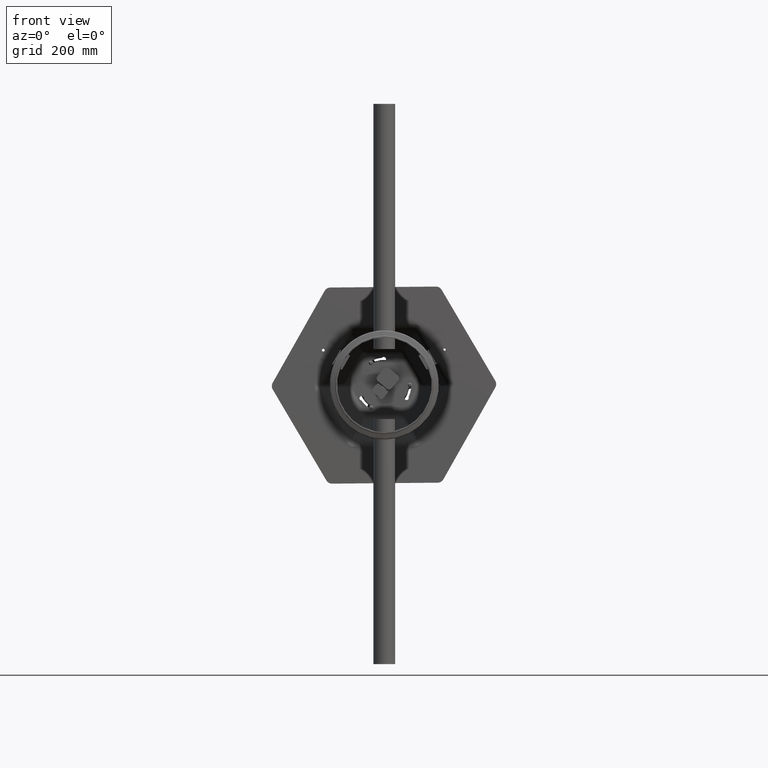
[diagram: clean part render]
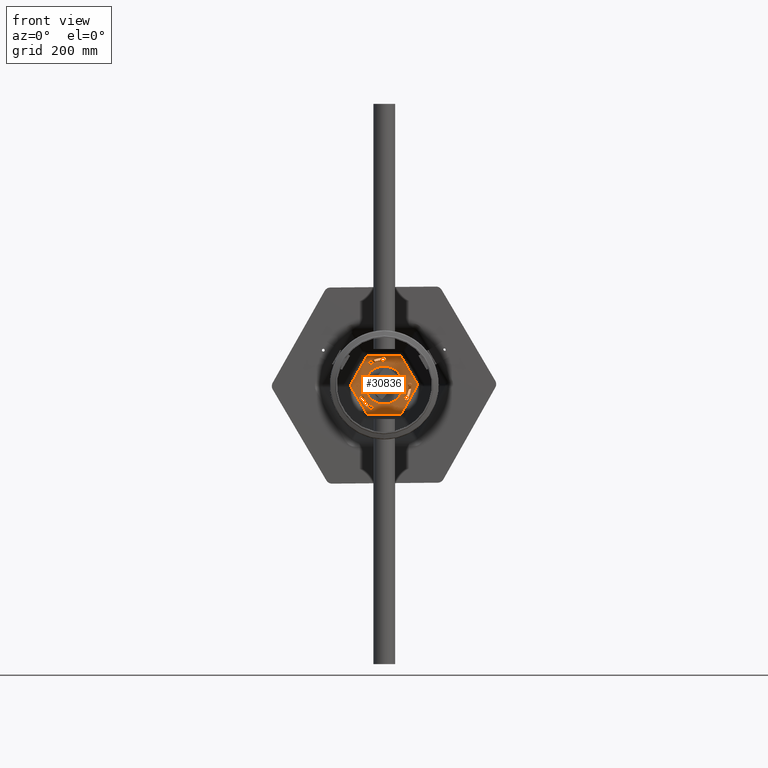
[diagram: same view with one face highlighted and labeled with its STEP entity id]
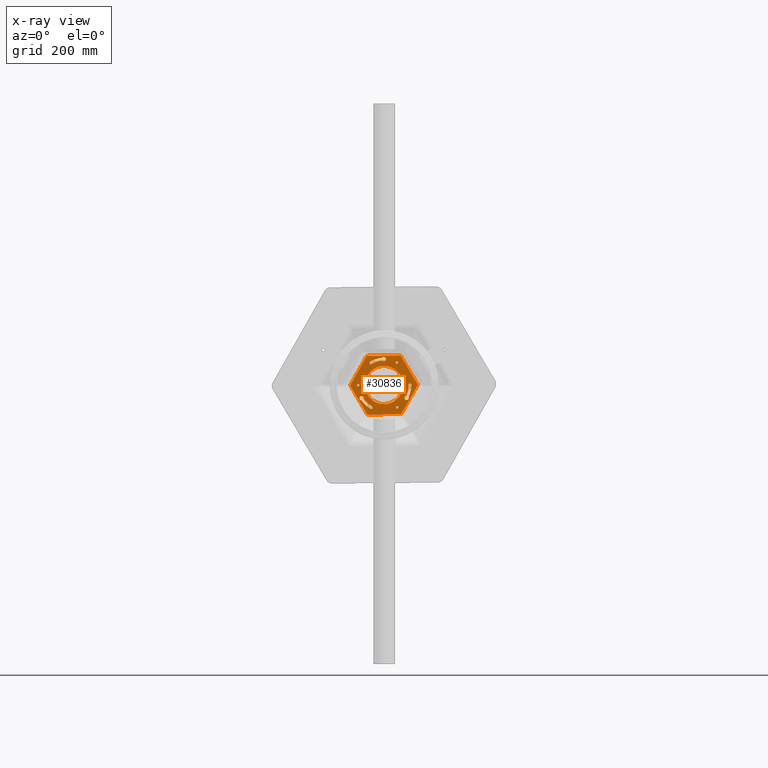
[diagram: x-ray of the same camera — body ghosted, the highlighted face saturated]
A machine part, front view. The second image highlights one B-rep face of the part: STEP entity #30836.
The next image is the same camera in x-ray: the body ghosted, the highlighted face saturated — about 0% of this face is hidden behind the body in this view.
In plain terms, the highlighted planar face has unit normal (-0, 1, 0).
Its self-contained STEP definition (entity closure, byte-faithful):
#21 = CARTESIAN_POINT ( 'NONE',  ( -43.33731325714350600, 23.75063888275055400, 135.0000000000000000 ) ) ;
#200 = CARTESIAN_POINT ( 'NONE',  ( -19.72942321818392100, 40.33311120503607600, 135.0000000000000000 ) ) ;
#386 = DIRECTION ( 'NONE',  ( 0.0000000000000000000, 0.0000000000000000000, 1.000000000000000000 ) ) ;
#402 = AXIS2_PLACEMENT_3D ( 'NONE', #15600, #15589, #15541 ) ;
#543 = DIRECTION ( 'NONE',  ( -0.8660254037844387100, -0.4999999999999998900, 0.0000000000000000000 ) ) ;
#784 = EDGE_CURVE ( 'NONE', #42117, #36613, #19581, .T. ) ;
#866 = CARTESIAN_POINT ( 'NONE',  ( -41.13731325714349700, 23.75063888275055400, 135.0000000000000000 ) ) ;
#890 = CARTESIAN_POINT ( 'NONE',  ( 35.00000000000000700, 0.0000000000000000000, 135.0000000000000000 ) ) ;
#1003 = CIRCLE ( 'NONE', #402, 2.599999999999987700 ) ;
#1068 = EDGE_CURVE ( 'NONE', #12992, #42647, #3122, .T. ) ;
#1324 = AXIS2_PLACEMENT_3D ( 'NONE', #37210, #36905, #36818 ) ;
#1646 = DIRECTION ( 'NONE',  ( 0.0000000000000000000, 0.0000000000000000000, 1.000000000000000000 ) ) ;
#1758 = EDGE_LOOP ( 'NONE', ( #16933, #24157 ) ) ;
#2126 = VERTEX_POINT ( 'NONE', #31276 ) ;
#2438 = VECTOR ( 'NONE', #7055, 1000.000000000000000 ) ;
#2462 = EDGE_CURVE ( 'NONE', #16580, #18860, #45882, .T. ) ;
#2533 = CARTESIAN_POINT ( 'NONE',  ( 0.0000000000000000000, 0.0000000000000000000, 135.0000000000000000 ) ) ;
#2613 = CIRCLE ( 'NONE', #16262, 44.90000000000024000 ) ;
#2824 = CARTESIAN_POINT ( 'NONE',  ( 41.13731325714429900, 23.75063888274916800, 135.0000000000000000 ) ) ;
#2888 = CARTESIAN_POINT ( 'NONE',  ( 41.13620667976078200, -23.75000000000073500, 135.0000000000000000 ) ) ;
#3051 = ORIENTED_EDGE ( 'NONE', *, *, #40595, .T. ) ;
#3110 = AXIS2_PLACEMENT_3D ( 'NONE', #22088, #386, #25646 ) ;
#3122 = CIRCLE ( 'NONE', #12870, 4.100000000000030700 ) ;
#3562 = VERTEX_POINT ( 'NONE', #8869 ) ;
#3619 = DIRECTION ( 'NONE',  ( 1.000000000000000000, 0.0000000000000000000, 0.0000000000000000000 ) ) ;
#3691 = DIRECTION ( 'NONE',  ( -0.0000000000000000000, -0.0000000000000000000, -1.000000000000000000 ) ) ;
#3754 = CARTESIAN_POINT ( 'NONE',  ( 0.0000000000000000000, 0.0000000000000000000, 135.0000000000000000 ) ) ;
#3961 = EDGE_LOOP ( 'NONE', ( #31742, #13343 ) ) ;
#3983 = LINE ( 'NONE', #6403, #24337 ) ;
#4060 = VERTEX_POINT ( 'NONE', #34501 ) ;
#4082 = CIRCLE ( 'NONE', #1324, 2.200000000000017100 ) ;
#4111 = VERTEX_POINT ( 'NONE', #40214 ) ;
#4481 = DIRECTION ( 'NONE',  ( 1.000000000000000000, 0.0000000000000000000, 0.0000000000000000000 ) ) ;
#4660 = CARTESIAN_POINT ( 'NONE',  ( -22.17900565742843400, 44.92328692390822900, 135.0000000000000000 ) ) ;
#4702 = CARTESIAN_POINT ( 'NONE',  ( -53.81158210808097700, 31.06813141562022200, 135.0000000000000000 ) ) ;
#4731 = ORIENTED_EDGE ( 'NONE', *, *, #1068, .T. ) ;
#4959 = CARTESIAN_POINT ( 'NONE',  ( 43.33731325714430900, 23.75063888274916800, 135.0000000000000000 ) ) ;
#4995 = EDGE_CURVE ( 'NONE', #18860, #23429, #21350, .T. ) ;
#5137 = ORIENTED_EDGE ( 'NONE', *, *, #34600, .T. ) ;
#5344 = ORIENTED_EDGE ( 'NONE', *, *, #14603, .T. ) ;
#5593 = DIRECTION ( 'NONE',  ( 9.472722593022467100E-016, -1.000000000000000000, 0.0000000000000000000 ) ) ;
#5601 = VERTEX_POINT ( 'NONE', #7346 ) ;
#5742 = CARTESIAN_POINT ( 'NONE',  ( -1.127570259384924600E-012, -47.50127776549990000, 135.0000000000000000 ) ) ;
#6013 = ORIENTED_EDGE ( 'NONE', *, *, #18342, .T. ) ;
#6166 = DIRECTION ( 'NONE',  ( 1.000000000000000000, 0.0000000000000000000, 0.0000000000000000000 ) ) ;
#6341 = CARTESIAN_POINT ( 'NONE',  ( 53.81158210808091300, 31.06813141562028200, 135.0000000000000000 ) ) ;
#6383 = CIRCLE ( 'NONE', #20867, 4.100000000000034300 ) ;
#6403 = CARTESIAN_POINT ( 'NONE',  ( 58.33513888012745200, 28.45645469558466100, 135.0000000000000000 ) ) ;
#6488 = DIRECTION ( 'NONE',  ( 1.000000000000000000, 0.0000000000000000000, 0.0000000000000000000 ) ) ;
#6543 = DIRECTION ( 'NONE',  ( 1.000000000000000000, 0.0000000000000000000, 0.0000000000000000000 ) ) ;
#6560 = CARTESIAN_POINT ( 'NONE',  ( 53.81158210808097000, -31.06813141562018300, 135.0000000000000000 ) ) ;
#6694 = CIRCLE ( 'NONE', #16559, 50.10000000000026400 ) ;
#6753 = CARTESIAN_POINT ( 'NONE',  ( -53.81158210808097700, 36.29148485569140100, 135.0000000000000000 ) ) ;
#7055 = DIRECTION ( 'NONE',  ( -4.736361296511237500E-016, 1.000000000000000000, 0.0000000000000000000 ) ) ;
#7190 = EDGE_CURVE ( 'NONE', #31088, #17276, #12160, .T. ) ;
#7214 = VERTEX_POINT ( 'NONE', #6341 ) ;
#7346 = CARTESIAN_POINT ( 'NONE',  ( 2.199999999998889500, -47.50127776549990000, 135.0000000000000000 ) ) ;
#7514 = DIRECTION ( 'NONE',  ( 1.000000000000000000, 0.0000000000000000000, 0.0000000000000000000 ) ) ;
#7567 = CARTESIAN_POINT ( 'NONE',  ( 4.814184326218615600E-013, 50.10000000000026400, 135.0000000000000000 ) ) ;
#7616 = DIRECTION ( 'NONE',  ( 0.0000000000000000000, 0.0000000000000000000, 1.000000000000000000 ) ) ;
#7706 = PLANE ( 'NONE',  #30160 ) ;
#7725 = DIRECTION ( 'NONE',  ( -0.0000000000000000000, -0.0000000000000000000, -1.000000000000000000 ) ) ;
#7731 = CARTESIAN_POINT ( 'NONE',  ( 0.0000000000000000000, 0.0000000000000000000, 135.0000000000000000 ) ) ;
#7919 = EDGE_CURVE ( 'NONE', #5601, #4060, #4082, .T. ) ;
#7956 = EDGE_LOOP ( 'NONE', ( #39666, #12235 ) ) ;
#8002 = EDGE_LOOP ( 'NONE', ( #12588, #5344, #42949, #20656, #35936 ) ) ;
#8239 = FACE_BOUND ( 'NONE', #23745, .T. ) ;
#8386 = EDGE_CURVE ( 'NONE', #13227, #12992, #6694, .T. ) ;
#8869 = CARTESIAN_POINT ( 'NONE',  ( 4.314508507928460300E-013, 44.90000000000024000, 135.0000000000000000 ) ) ;
#9390 = FACE_BOUND ( 'NONE', #3961, .T. ) ;
#9746 = AXIS2_PLACEMENT_3D ( 'NONE', #3754, #3691, #3619 ) ;
#10045 = VECTOR ( 'NONE', #5593, 1000.000000000000000 ) ;
#10198 = EDGE_LOOP ( 'NONE', ( #34285, #14999, #18827, #19966, #17897, #6013 ) ) ;
#10279 = VERTEX_POINT ( 'NONE', #4959 ) ;
#10515 = EDGE_CURVE ( 'NONE', #4060, #5601, #37827, .T. ) ;
#10678 = CARTESIAN_POINT ( 'NONE',  ( -38.88454062992192900, -22.44999999999936000, 135.0000000000000000 ) ) ;
#10808 = CARTESIAN_POINT ( 'NONE',  ( 4.523556772046480200, 64.74793955127599100, 135.0000000000000000 ) ) ;
#10875 = AXIS2_PLACEMENT_3D ( 'NONE', #5742, #26008, #16015 ) ;
#11331 = AXIS2_PLACEMENT_3D ( 'NONE', #45556, #45094, #44932 ) ;
#11493 = ORIENTED_EDGE ( 'NONE', *, *, #18981, .T. ) ;
#11559 = AXIS2_PLACEMENT_3D ( 'NONE', #2824, #28021, #6488 ) ;
#11747 = EDGE_CURVE ( 'NONE', #27981, #31088, #37156, .T. ) ;
#11817 = EDGE_CURVE ( 'NONE', #44753, #39906, #6383, .T. ) ;
#11862 = CIRCLE ( 'NONE', #16942, 44.90000000000024700 ) ;
#12160 = LINE ( 'NONE', #6753, #2438 ) ;
#12235 = ORIENTED_EDGE ( 'NONE', *, *, #18663, .T. ) ;
#12275 = AXIS2_PLACEMENT_3D ( 'NONE', #38984, #38930, #38865 ) ;
#12397 = AXIS2_PLACEMENT_3D ( 'NONE', #23304, #1646, #26874 ) ;
#12588 = ORIENTED_EDGE ( 'NONE', *, *, #4995, .T. ) ;
#12870 = AXIS2_PLACEMENT_3D ( 'NONE', #22646, #22505, #22360 ) ;
#12882 = DIRECTION ( 'NONE',  ( 1.000000000000000000, 0.0000000000000000000, 0.0000000000000000000 ) ) ;
#12924 = DIRECTION ( 'NONE',  ( 0.0000000000000000000, 0.0000000000000000000, 1.000000000000000000 ) ) ;
#12979 = CARTESIAN_POINT ( 'NONE',  ( -41.13731325714349700, 23.75063888275055400, 135.0000000000000000 ) ) ;
#12992 = VERTEX_POINT ( 'NONE', #4660 ) ;
#13227 = VERTEX_POINT ( 'NONE', #7567 ) ;
#13343 = ORIENTED_EDGE ( 'NONE', *, *, #35372, .T. ) ;
#14603 = EDGE_CURVE ( 'NONE', #23429, #24091, #25369, .T. ) ;
#14649 = CIRCLE ( 'NONE', #11559, 2.200000000000007300 ) ;
#14809 = EDGE_CURVE ( 'NONE', #24506, #2126, #25945, .T. ) ;
#14999 = ORIENTED_EDGE ( 'NONE', *, *, #21104, .T. ) ;
#15039 = CARTESIAN_POINT ( 'NONE',  ( 0.0000000000000000000, 0.0000000000000000000, 135.0000000000000000 ) ) ;
#15541 = DIRECTION ( 'NONE',  ( 1.000000000000000000, 0.0000000000000000000, 0.0000000000000000000 ) ) ;
#15589 = DIRECTION ( 'NONE',  ( 0.0000000000000000000, 0.0000000000000000000, 1.000000000000000000 ) ) ;
#15600 = CARTESIAN_POINT ( 'NONE',  ( 4.428965874603285600E-013, 47.50000000000031300, 135.0000000000000000 ) ) ;
#15716 = AXIS2_PLACEMENT_3D ( 'NONE', #866, #26113, #4481 ) ;
#15858 = EDGE_CURVE ( 'NONE', #24091, #34918, #35836, .T. ) ;
#15864 = AXIS2_PLACEMENT_3D ( 'NONE', #26206, #26112, #26053 ) ;
#16015 = DIRECTION ( 'NONE',  ( 1.000000000000000000, 0.0000000000000000000, 0.0000000000000000000 ) ) ;
#16132 = ORIENTED_EDGE ( 'NONE', *, *, #16773, .T. ) ;
#16262 = AXIS2_PLACEMENT_3D ( 'NONE', #29219, #7725, #32731 ) ;
#16474 = VERTEX_POINT ( 'NONE', #24823 ) ;
#16559 = AXIS2_PLACEMENT_3D ( 'NONE', #7731, #7616, #7514 ) ;
#16580 = VERTEX_POINT ( 'NONE', #21835 ) ;
#16670 = CARTESIAN_POINT ( 'NONE',  ( -23.75000000000078900, -41.13620667976051200, 135.0000000000000000 ) ) ;
#16705 = CARTESIAN_POINT ( 'NONE',  ( -25.06478730813242400, -37.25273731147960600, 135.0000000000000000 ) ) ;
#16773 = EDGE_CURVE ( 'NONE', #44944, #13227, #1003, .T. ) ;
#16933 = ORIENTED_EDGE ( 'NONE', *, *, #7919, .T. ) ;
#16942 = AXIS2_PLACEMENT_3D ( 'NONE', #18670, #43455, #22317 ) ;
#16976 = CARTESIAN_POINT ( 'NONE',  ( -2.801986739927161200E-014, -62.13626283124039400, 135.0000000000000000 ) ) ;
#17276 = VERTEX_POINT ( 'NONE', #4702 ) ;
#17870 = FACE_BOUND ( 'NONE', #29874, .T. ) ;
#17873 = ORIENTED_EDGE ( 'NONE', *, *, #41596, .T. ) ;
#17897 = ORIENTED_EDGE ( 'NONE', *, *, #11817, .T. ) ;
#17962 = EDGE_CURVE ( 'NONE', #2126, #44753, #44533, .T. ) ;
#18318 = VECTOR ( 'NONE', #31478, 1000.000000000000000 ) ;
#18342 = EDGE_CURVE ( 'NONE', #39906, #16474, #22387, .T. ) ;
#18617 = DIRECTION ( 'NONE',  ( 1.000000000000000000, 0.0000000000000000000, -0.0000000000000000000 ) ) ;
#18663 = EDGE_CURVE ( 'NONE', #4111, #10279, #38337, .T. ) ;
#18670 = CARTESIAN_POINT ( 'NONE',  ( 0.0000000000000000000, 0.0000000000000000000, 135.0000000000000000 ) ) ;
#18827 = ORIENTED_EDGE ( 'NONE', *, *, #14809, .T. ) ;
#18847 = CIRCLE ( 'NONE', #37523, 2.599999999999991200 ) ;
#18860 = VERTEX_POINT ( 'NONE', #16705 ) ;
#18981 = EDGE_CURVE ( 'NONE', #43920, #21262, #28398, .T. ) ;
#18999 = FACE_BOUND ( 'NONE', #1758, .T. ) ;
#19260 = CARTESIAN_POINT ( 'NONE',  ( 2.600000000000430400, 47.50000000000031300, 135.0000000000000000 ) ) ;
#19581 = CIRCLE ( 'NONE', #11331, 35.00000000000000700 ) ;
#19966 = ORIENTED_EDGE ( 'NONE', *, *, #17962, .T. ) ;
#20656 = ORIENTED_EDGE ( 'NONE', *, *, #34695, .T. ) ;
#20867 = AXIS2_PLACEMENT_3D ( 'NONE', #29549, #29540, #29494 ) ;
#21104 = EDGE_CURVE ( 'NONE', #26755, #24506, #18847, .T. ) ;
#21262 = VERTEX_POINT ( 'NONE', #21 ) ;
#21350 = CIRCLE ( 'NONE', #9746, 44.90000000000023300 ) ;
#21835 = CARTESIAN_POINT ( 'NONE',  ( -19.65000000000075500, -41.13620667976051200, 135.0000000000000000 ) ) ;
#22062 = DIRECTION ( 'NONE',  ( 1.000000000000000000, 0.0000000000000000000, 0.0000000000000000000 ) ) ;
#22088 = CARTESIAN_POINT ( 'NONE',  ( 4.428965874603285600E-013, 47.50000000000031300, 135.0000000000000000 ) ) ;
#22123 = DIRECTION ( 'NONE',  ( 0.0000000000000000000, 0.0000000000000000000, 1.000000000000000000 ) ) ;
#22175 = CARTESIAN_POINT ( 'NONE',  ( 41.13731325714429900, 23.75063888274916800, 135.0000000000000000 ) ) ;
#22317 = DIRECTION ( 'NONE',  ( 1.000000000000000000, 0.0000000000000000000, 0.0000000000000000000 ) ) ;
#22360 = DIRECTION ( 'NONE',  ( 1.000000000000000000, 0.0000000000000000000, 0.0000000000000000000 ) ) ;
#22387 = CIRCLE ( 'NONE', #39747, 4.100000000000034300 ) ;
#22505 = DIRECTION ( 'NONE',  ( 0.0000000000000000000, 0.0000000000000000000, 1.000000000000000000 ) ) ;
#22646 = CARTESIAN_POINT ( 'NONE',  ( -23.74999999999971600, 41.13620667976114500, 135.0000000000000000 ) ) ;
#22910 = EDGE_CURVE ( 'NONE', #3562, #44944, #34169, .T. ) ;
#23304 = CARTESIAN_POINT ( 'NONE',  ( -23.75000000000078900, -41.13620667976051200, 135.0000000000000000 ) ) ;
#23429 = VERTEX_POINT ( 'NONE', #10678 ) ;
#23745 = EDGE_LOOP ( 'NONE', ( #11493, #5137 ) ) ;
#24021 = LINE ( 'NONE', #10808, #32286 ) ;
#24091 = VERTEX_POINT ( 'NONE', #39715 ) ;
#24157 = ORIENTED_EDGE ( 'NONE', *, *, #10515, .T. ) ;
#24166 = CARTESIAN_POINT ( 'NONE',  ( 38.88454062992117600, -22.45000000000069600, 135.0000000000000000 ) ) ;
#24337 = VECTOR ( 'NONE', #27956, 1000.000000000000100 ) ;
#24506 = VERTEX_POINT ( 'NONE', #42482 ) ;
#24823 = CARTESIAN_POINT ( 'NONE',  ( 44.79421052631598600, -3.080373893556446000, 135.0000000000000000 ) ) ;
#24963 = ORIENTED_EDGE ( 'NONE', *, *, #7190, .T. ) ;
#24983 = CARTESIAN_POINT ( 'NONE',  ( -27.81520486888798200, -41.66922579196565800, 135.0000000000000000 ) ) ;
#25301 = AXIS2_PLACEMENT_3D ( 'NONE', #12979, #12924, #12882 ) ;
#25369 = CIRCLE ( 'NONE', #41410, 2.599999999999991200 ) ;
#25646 = DIRECTION ( 'NONE',  ( 1.000000000000000000, 0.0000000000000000000, 0.0000000000000000000 ) ) ;
#25945 = CIRCLE ( 'NONE', #15864, 50.10000000000027100 ) ;
#26008 = DIRECTION ( 'NONE',  ( 0.0000000000000000000, 0.0000000000000000000, 1.000000000000000000 ) ) ;
#26053 = DIRECTION ( 'NONE',  ( 1.000000000000000000, 0.0000000000000000000, 0.0000000000000000000 ) ) ;
#26112 = DIRECTION ( 'NONE',  ( 0.0000000000000000000, 0.0000000000000000000, 1.000000000000000000 ) ) ;
#26113 = DIRECTION ( 'NONE',  ( 0.0000000000000000000, 0.0000000000000000000, 1.000000000000000000 ) ) ;
#26206 = CARTESIAN_POINT ( 'NONE',  ( 0.0000000000000000000, 0.0000000000000000000, 135.0000000000000000 ) ) ;
#26755 = VERTEX_POINT ( 'NONE', #24166 ) ;
#26874 = DIRECTION ( 'NONE',  ( 1.000000000000000000, 0.0000000000000000000, 0.0000000000000000000 ) ) ;
#27353 = FACE_BOUND ( 'NONE', #8002, .T. ) ;
#27728 = DIRECTION ( 'NONE',  ( 0.0000000000000000000, 0.0000000000000000000, 1.000000000000000000 ) ) ;
#27751 = CARTESIAN_POINT ( 'NONE',  ( -38.93731325714348700, 23.75063888275055400, 135.0000000000000000 ) ) ;
#27956 = DIRECTION ( 'NONE',  ( 0.8660254037844388200, -0.4999999999999996700, 0.0000000000000000000 ) ) ;
#27981 = VERTEX_POINT ( 'NONE', #16976 ) ;
#27989 = ORIENTED_EDGE ( 'NONE', *, *, #28858, .T. ) ;
#28021 = DIRECTION ( 'NONE',  ( 0.0000000000000000000, 0.0000000000000000000, 1.000000000000000000 ) ) ;
#28076 = DIRECTION ( 'NONE',  ( 0.0000000000000000000, 0.0000000000000000000, 1.000000000000000000 ) ) ;
#28237 = EDGE_CURVE ( 'NONE', #16474, #26755, #11862, .T. ) ;
#28398 = CIRCLE ( 'NONE', #25301, 2.200000000000007300 ) ;
#28858 = EDGE_CURVE ( 'NONE', #7214, #45236, #38469, .T. ) ;
#29219 = CARTESIAN_POINT ( 'NONE',  ( 0.0000000000000000000, 0.0000000000000000000, 135.0000000000000000 ) ) ;
#29354 = CARTESIAN_POINT ( 'NONE',  ( -4.523556772046490900, -64.74793955127597700, 135.0000000000000000 ) ) ;
#29494 = DIRECTION ( 'NONE',  ( 1.000000000000000000, 0.0000000000000000000, 0.0000000000000000000 ) ) ;
#29540 = DIRECTION ( 'NONE',  ( 0.0000000000000000000, 0.0000000000000000000, 1.000000000000000000 ) ) ;
#29549 = CARTESIAN_POINT ( 'NONE',  ( 47.50000000000013500, -6.210310043996969400E-013, 135.0000000000000000 ) ) ;
#29561 = EDGE_CURVE ( 'NONE', #10279, #4111, #14649, .T. ) ;
#29706 = AXIS2_PLACEMENT_3D ( 'NONE', #41273, #41230, #41217 ) ;
#29833 = EDGE_LOOP ( 'NONE', ( #27989, #34139, #32039, #24963, #17873, #34701 ) ) ;
#29874 = EDGE_LOOP ( 'NONE', ( #3051, #36498, #16132, #30464, #4731 ) ) ;
#30160 = AXIS2_PLACEMENT_3D ( 'NONE', #15039, #39824, #18617 ) ;
#30365 = CIRCLE ( 'NONE', #12397, 4.100000000000034300 ) ;
#30464 = ORIENTED_EDGE ( 'NONE', *, *, #8386, .T. ) ;
#30782 = VERTEX_POINT ( 'NONE', #42947 ) ;
#30836 = ADVANCED_FACE ( 'NONE', ( #37824, #9390, #46164, #36722, #27353, #18999, #17870, #8239 ), #7706, .F. ) ;
#30854 = EDGE_CURVE ( 'NONE', #45236, #27981, #35589, .T. ) ;
#30986 = DIRECTION ( 'NONE',  ( 1.000000000000000000, 0.0000000000000000000, 0.0000000000000000000 ) ) ;
#31030 = DIRECTION ( 'NONE',  ( 0.0000000000000000000, 0.0000000000000000000, 1.000000000000000000 ) ) ;
#31088 = VERTEX_POINT ( 'NONE', #44933 ) ;
#31150 = CARTESIAN_POINT ( 'NONE',  ( 47.50000000000013500, -6.210310043996969400E-013, 135.0000000000000000 ) ) ;
#31276 = CARTESIAN_POINT ( 'NONE',  ( 49.99421052631602400, -3.254061131942533400, 135.0000000000000000 ) ) ;
#31478 = DIRECTION ( 'NONE',  ( -0.8660254037844387100, 0.4999999999999998300, 0.0000000000000000000 ) ) ;
#31725 = CARTESIAN_POINT ( 'NONE',  ( -58.33513888012744500, -28.45645469558464300, 135.0000000000000000 ) ) ;
#31742 = ORIENTED_EDGE ( 'NONE', *, *, #784, .T. ) ;
#32039 = ORIENTED_EDGE ( 'NONE', *, *, #11747, .T. ) ;
#32286 = VECTOR ( 'NONE', #35713, 1000.000000000000000 ) ;
#32298 = CARTESIAN_POINT ( 'NONE',  ( 51.60000000000016500, -6.210310043996969400E-013, 135.0000000000000000 ) ) ;
#32731 = DIRECTION ( 'NONE',  ( 1.000000000000000000, 0.0000000000000000000, 0.0000000000000000000 ) ) ;
#33516 = DIRECTION ( 'NONE',  ( 0.0000000000000000000, 0.0000000000000000000, 1.000000000000000000 ) ) ;
#33930 = CARTESIAN_POINT ( 'NONE',  ( 53.81158210808097700, -36.29148485569137300, 135.0000000000000000 ) ) ;
#34139 = ORIENTED_EDGE ( 'NONE', *, *, #30854, .T. ) ;
#34169 = CIRCLE ( 'NONE', #3110, 2.599999999999987700 ) ;
#34285 = ORIENTED_EDGE ( 'NONE', *, *, #28237, .T. ) ;
#34421 = EDGE_CURVE ( 'NONE', #30782, #7214, #3983, .T. ) ;
#34450 = AXIS2_PLACEMENT_3D ( 'NONE', #2533, #27728, #6166 ) ;
#34482 = VECTOR ( 'NONE', #543, 1000.000000000000000 ) ;
#34501 = CARTESIAN_POINT ( 'NONE',  ( -2.200000000001144600, -47.50127776549990000, 135.0000000000000000 ) ) ;
#34600 = EDGE_CURVE ( 'NONE', #21262, #43920, #44792, .T. ) ;
#34695 = EDGE_CURVE ( 'NONE', #34918, #16580, #30365, .T. ) ;
#34701 = ORIENTED_EDGE ( 'NONE', *, *, #34421, .T. ) ;
#34754 = AXIS2_PLACEMENT_3D ( 'NONE', #16670, #33516, #45662 ) ;
#34866 = DIRECTION ( 'NONE',  ( 1.000000000000000000, 0.0000000000000000000, 0.0000000000000000000 ) ) ;
#34918 = VERTEX_POINT ( 'NONE', #24983 ) ;
#34943 = DIRECTION ( 'NONE',  ( 0.0000000000000000000, 0.0000000000000000000, 1.000000000000000000 ) ) ;
#35039 = CARTESIAN_POINT ( 'NONE',  ( -41.13620667976155000, -23.74999999999938200, 135.0000000000000000 ) ) ;
#35372 = EDGE_CURVE ( 'NONE', #36613, #42117, #44705, .T. ) ;
#35589 = LINE ( 'NONE', #29354, #34482 ) ;
#35713 = DIRECTION ( 'NONE',  ( 0.8660254037844388200, 0.4999999999999997200, -0.0000000000000000000 ) ) ;
#35836 = CIRCLE ( 'NONE', #12275, 50.10000000000025700 ) ;
#35936 = ORIENTED_EDGE ( 'NONE', *, *, #2462, .T. ) ;
#36498 = ORIENTED_EDGE ( 'NONE', *, *, #22910, .T. ) ;
#36613 = VERTEX_POINT ( 'NONE', #42596 ) ;
#36722 = FACE_BOUND ( 'NONE', #7956, .T. ) ;
#36818 = DIRECTION ( 'NONE',  ( 1.000000000000000000, 0.0000000000000000000, 0.0000000000000000000 ) ) ;
#36905 = DIRECTION ( 'NONE',  ( 0.0000000000000000000, 0.0000000000000000000, 1.000000000000000000 ) ) ;
#37156 = LINE ( 'NONE', #31725, #18318 ) ;
#37210 = CARTESIAN_POINT ( 'NONE',  ( -1.127570259384924600E-012, -47.50127776549990000, 135.0000000000000000 ) ) ;
#37523 = AXIS2_PLACEMENT_3D ( 'NONE', #2888, #28076, #6543 ) ;
#37824 = FACE_OUTER_BOUND ( 'NONE', #29833, .T. ) ;
#37827 = CIRCLE ( 'NONE', #10875, 2.200000000000017100 ) ;
#38337 = CIRCLE ( 'NONE', #38869, 2.200000000000007300 ) ;
#38469 = LINE ( 'NONE', #33930, #10045 ) ;
#38865 = DIRECTION ( 'NONE',  ( 1.000000000000000000, 0.0000000000000000000, 0.0000000000000000000 ) ) ;
#38869 = AXIS2_PLACEMENT_3D ( 'NONE', #22175, #22123, #22062 ) ;
#38930 = DIRECTION ( 'NONE',  ( 0.0000000000000000000, 0.0000000000000000000, 1.000000000000000000 ) ) ;
#38984 = CARTESIAN_POINT ( 'NONE',  ( 0.0000000000000000000, 0.0000000000000000000, 135.0000000000000000 ) ) ;
#39269 = CARTESIAN_POINT ( 'NONE',  ( 43.40000000000009800, -6.205288992120465000E-013, 135.0000000000000000 ) ) ;
#39666 = ORIENTED_EDGE ( 'NONE', *, *, #29561, .T. ) ;
#39715 = CARTESIAN_POINT ( 'NONE',  ( -43.38787272960108500, -25.04999999999928300, 135.0000000000000000 ) ) ;
#39747 = AXIS2_PLACEMENT_3D ( 'NONE', #31150, #31030, #30986 ) ;
#39824 = DIRECTION ( 'NONE',  ( 0.0000000000000000000, 0.0000000000000000000, 1.000000000000000000 ) ) ;
#39906 = VERTEX_POINT ( 'NONE', #39269 ) ;
#40214 = CARTESIAN_POINT ( 'NONE',  ( 38.93731325714429700, 23.75063888274916800, 135.0000000000000000 ) ) ;
#40595 = EDGE_CURVE ( 'NONE', #42647, #3562, #2613, .T. ) ;
#41217 = DIRECTION ( 'NONE',  ( 1.000000000000000000, 0.0000000000000000000, 0.0000000000000000000 ) ) ;
#41230 = DIRECTION ( 'NONE',  ( 0.0000000000000000000, 0.0000000000000000000, 1.000000000000000000 ) ) ;
#41273 = CARTESIAN_POINT ( 'NONE',  ( 47.50000000000013500, -6.210310043996969400E-013, 135.0000000000000000 ) ) ;
#41410 = AXIS2_PLACEMENT_3D ( 'NONE', #35039, #34943, #34866 ) ;
#41596 = EDGE_CURVE ( 'NONE', #17276, #30782, #24021, .T. ) ;
#42117 = VERTEX_POINT ( 'NONE', #890 ) ;
#42482 = CARTESIAN_POINT ( 'NONE',  ( 43.38787272960024000, -25.05000000000077200, 135.0000000000000000 ) ) ;
#42596 = CARTESIAN_POINT ( 'NONE',  ( -35.00000000000000700, 4.286263797015737300E-015, 135.0000000000000000 ) ) ;
#42647 = VERTEX_POINT ( 'NONE', #200 ) ;
#42947 = CARTESIAN_POINT ( 'NONE',  ( 1.643698193626525900E-014, 62.13626283124040800, 135.0000000000000000 ) ) ;
#42949 = ORIENTED_EDGE ( 'NONE', *, *, #15858, .T. ) ;
#43455 = DIRECTION ( 'NONE',  ( -0.0000000000000000000, -0.0000000000000000000, -1.000000000000000000 ) ) ;
#43920 = VERTEX_POINT ( 'NONE', #27751 ) ;
#44533 = CIRCLE ( 'NONE', #29706, 4.100000000000034300 ) ;
#44705 = CIRCLE ( 'NONE', #34450, 35.00000000000000700 ) ;
#44753 = VERTEX_POINT ( 'NONE', #32298 ) ;
#44792 = CIRCLE ( 'NONE', #15716, 2.200000000000007300 ) ;
#44932 = DIRECTION ( 'NONE',  ( 1.000000000000000000, 0.0000000000000000000, 0.0000000000000000000 ) ) ;
#44933 = CARTESIAN_POINT ( 'NONE',  ( -53.81158210808094100, -31.06813141562024700, 135.0000000000000000 ) ) ;
#44944 = VERTEX_POINT ( 'NONE', #19260 ) ;
#45094 = DIRECTION ( 'NONE',  ( 0.0000000000000000000, 0.0000000000000000000, 1.000000000000000000 ) ) ;
#45236 = VERTEX_POINT ( 'NONE', #6560 ) ;
#45556 = CARTESIAN_POINT ( 'NONE',  ( 0.0000000000000000000, 0.0000000000000000000, 135.0000000000000000 ) ) ;
#45662 = DIRECTION ( 'NONE',  ( 1.000000000000000000, 0.0000000000000000000, 0.0000000000000000000 ) ) ;
#45882 = CIRCLE ( 'NONE', #34754, 4.100000000000034300 ) ;
#46164 = FACE_BOUND ( 'NONE', #10198, .T. ) ;